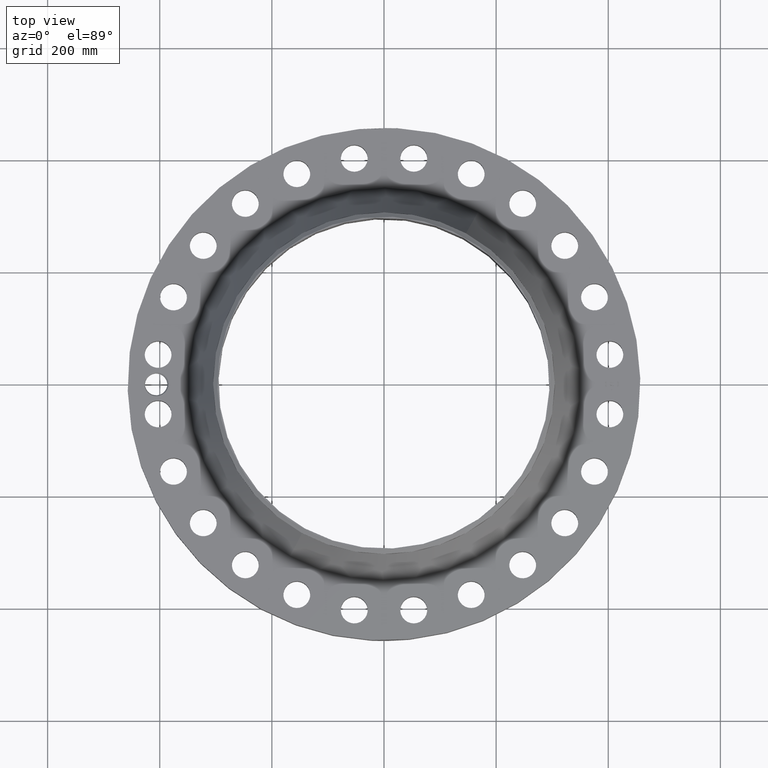
[diagram: clean part render]
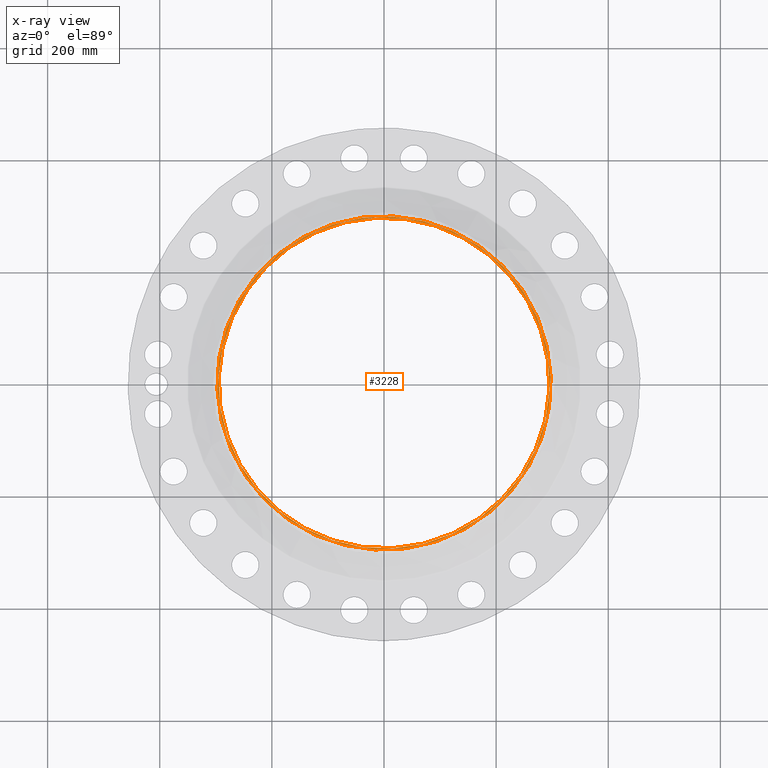
[diagram: x-ray — body ghosted, one internal face saturated and labeled with its STEP entity id]
A machine part, top view, then the same camera in x-ray: the body is ghosted and one INTERNAL B-rep face — a face not visible from any outside direction — is saturated and labeled: STEP entity #3228.
In plain terms, the highlighted planar face has unit normal (0, 0, -1).
Its self-contained STEP definition (entity closure, byte-faithful):
#1701=AXIS2_PLACEMENT_3D('Circle Axis2P3D',#1699,#1700,$) ;
#1769=AXIS2_PLACEMENT_3D('Circle Axis2P3D',#1767,#1768,$) ;
#3204=AXIS2_PLACEMENT_3D('Plane Axis2P3D',#3201,#3202,#3203) ;
#3208=AXIS2_PLACEMENT_3D('Circle Axis2P3D',#3206,#3207,$) ;
#3217=AXIS2_PLACEMENT_3D('Circle Axis2P3D',#3215,#3216,$) ;
#1699=CARTESIAN_POINT('Axis2P3D Location',(0.,0.,7.13000000003)) ;
#1703=CARTESIAN_POINT('Vertex',(5.5733218863,10.201897282,7.13000000003)) ;
#1705=CARTESIAN_POINT('Vertex',(-5.5733218863,-10.201897282,7.13000000003)) ;
#1767=CARTESIAN_POINT('Axis2P3D Location',(0.,0.,7.13000000003)) ;
#3201=CARTESIAN_POINT('Axis2P3D Location',(0.,12.,7.13000000003)) ;
#3206=CARTESIAN_POINT('Axis2P3D Location',(0.,0.,7.13000000003)) ;
#3210=CARTESIAN_POINT('Vertex',(5.61107192871,-10.2709982711,7.13000000003)) ;
#3212=CARTESIAN_POINT('Vertex',(-5.61107192871,10.2709982711,7.13000000003)) ;
#3215=CARTESIAN_POINT('Axis2P3D Location',(0.,0.,7.13000000003)) ;
#1700=DIRECTION('Axis2P3D Direction',(0.,0.,-0.0393700787402)) ;
#1768=DIRECTION('Axis2P3D Direction',(0.,0.,-0.0393700787402)) ;
#3202=DIRECTION('Axis2P3D Direction',(0.,0.,-0.0393700787402)) ;
#3203=DIRECTION('Axis2P3D XDirection',(0.0393700787402,0.,0.)) ;
#3207=DIRECTION('Axis2P3D Direction',(0.,0.,-0.0393700787402)) ;
#3216=DIRECTION('Axis2P3D Direction',(0.,0.,-0.0393700787402)) ;
#3221=ORIENTED_EDGE('',*,*,#3214,.T.) ;
#3222=ORIENTED_EDGE('',*,*,#3219,.T.) ;
#3225=ORIENTED_EDGE('',*,*,#1771,.T.) ;
#3226=ORIENTED_EDGE('',*,*,#1707,.T.) ;
#3227=FACE_BOUND('',#3224,.T.) ;
#3228=ADVANCED_FACE('PartBody',(#3223,#3227),#3205,.F.) ;
#1702=CIRCLE('generated circle',#1701,11.625) ;
#1770=CIRCLE('generated circle',#1769,11.625) ;
#3209=CIRCLE('generated circle',#3208,11.7037401575) ;
#3218=CIRCLE('generated circle',#3217,11.7037401575) ;
#1707=EDGE_CURVE('',#1704,#1706,#1702,.T.) ;
#1771=EDGE_CURVE('',#1706,#1704,#1770,.T.) ;
#3214=EDGE_CURVE('',#3211,#3213,#3209,.F.) ;
#3219=EDGE_CURVE('',#3213,#3211,#3218,.F.) ;
#3220=EDGE_LOOP('',(#3221,#3222)) ;
#3224=EDGE_LOOP('',(#3225,#3226)) ;
#3223=FACE_OUTER_BOUND('',#3220,.T.) ;
#3205=PLANE('',#3204) ;
#1704=VERTEX_POINT('',#1703) ;
#1706=VERTEX_POINT('',#1705) ;
#3211=VERTEX_POINT('',#3210) ;
#3213=VERTEX_POINT('',#3212) ;